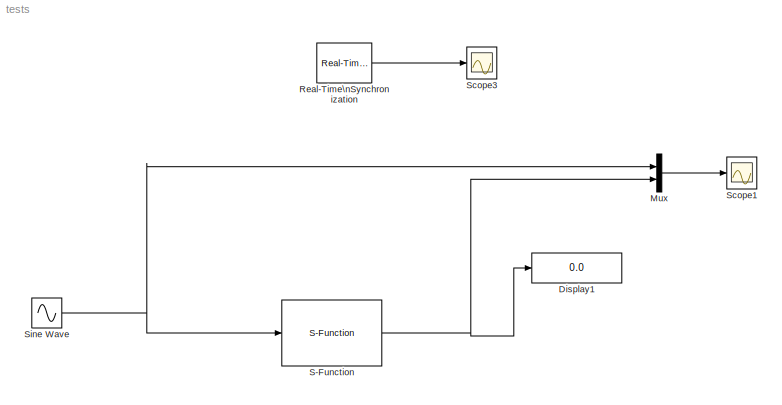
MODEL tests
KIND model
BLOCK [Display] Display1
  Decimation = 1
  Lockdown = off
  Ports = [1]
  SID = 8
BLOCK [Mux] Mux
  DisplayOption = bar
  Inputs = 2
  Ports = [2, 1]
  SID = 10
BLOCK [Reference] Real-Time\nSynchronization  REF=rtwinlib/Real-Time\nSynchronization
  MaxMissedTicks = 10000
  Ports = [0, 1]
  SID = 13
  SampleTime = 0.05
  ShowMissedTicks = on
  SourceBlock = rtwinlib/Real-Time\nSynchronization
  SourceType = RTWin Real-Time Synchronization
  YieldWhenWaiting = off
BLOCK [S-Function] S-Function
  EnableBusSupport = off
  FunctionName = test
  Parameters = p1,p2
  Ports = [1, 1]
  SID = 19
BLOCK [Scope] Scope1
  DataFormat = StructureWithTime
  Floating = off
  NumInputPorts = 1
  Ports = [1]
  SID = 11
  SampleTime = 0
  SaveName = ScopeData2
  ShowLegends = off
  YMax = 6.5
  YMin = -0.5
BLOCK [Scope] Scope3
  DataFormat = StructureWithTime
  Floating = off
  NumInputPorts = 1
  Ports = [1]
  SID = 14
  SampleTime = 0
  ShowLegends = off
  TimeRange = 10
  YMax = 135
  YMin = 35
  ZoomMode = xonly
BLOCK [Sin] Sine Wave
  Bias = 1
  Ports = [0, 1]
  SID = 16
LINE Mux:1 -> Scope1:1
LINE Real-Time\nSynchronization:1 -> Scope3:1
NET S-Function:1 -> Display1:1, Mux:2
NET Sine Wave:1 -> Mux:1, S-Function:1
note: NET lines group one-source signal fan-out (src -> all destinations, sorted); 1:1 wires keep LINE
